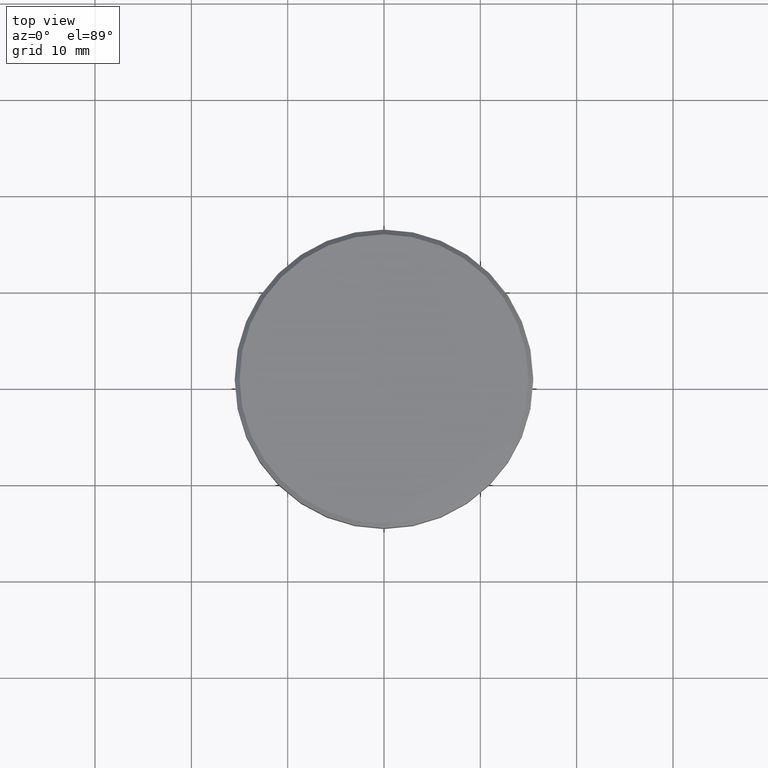
[diagram: clean part render]
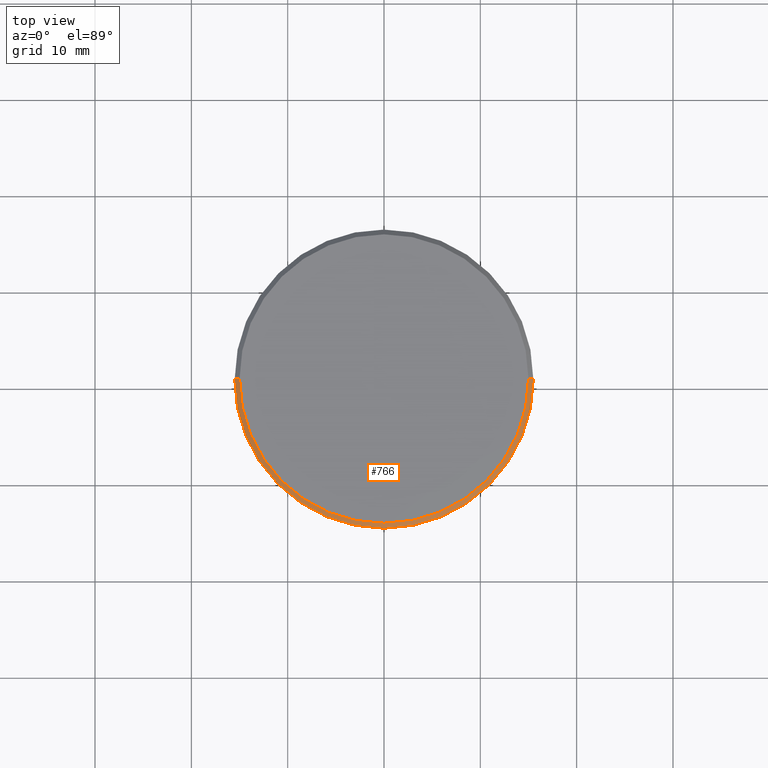
[diagram: same view with one face highlighted and labeled with its STEP entity id]
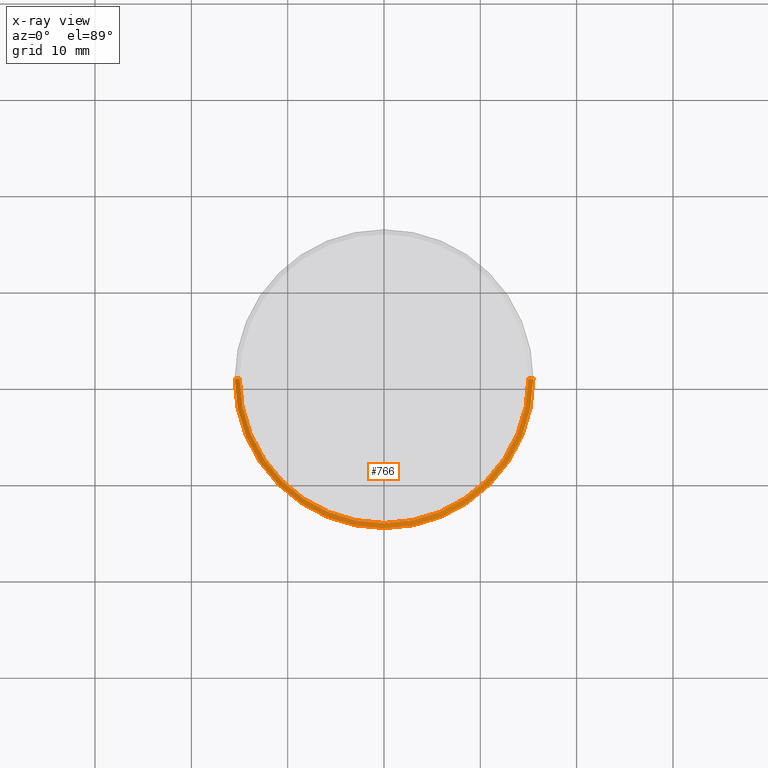
[diagram: x-ray of the same camera — body ghosted, the highlighted face saturated]
A machine part, top view. The second image highlights one B-rep face of the part: STEP entity #766.
The next image is the same camera in x-ray: the body ghosted, the highlighted face saturated — about 0% of this face is hidden behind the body in this view.
In plain terms, the highlighted conical surface has half-angle 45 deg.
Its self-contained STEP definition (entity closure, byte-faithful):
#48 = LINE ( 'NONE', #698, #992 ) ;
#91 = CARTESIAN_POINT ( 'NONE',  ( 14.99999999999998579, 1.867586368699712587E-15, 0.000000000000000000 ) ) ;
#145 = DIRECTION ( 'NONE',  ( 0.7071067811865439090, 8.659560562354888485E-17, -0.7071067811865512365 ) ) ;
#177 = DIRECTION ( 'NONE',  ( 0.000000000000000000, 0.000000000000000000, -1.000000000000000000 ) ) ;
#239 = ORIENTED_EDGE ( 'NONE', *, *, #328, .F. ) ;
#260 = EDGE_LOOP ( 'NONE', ( #239, #866, #711, #626 ) ) ;
#289 = CARTESIAN_POINT ( 'NONE',  ( -15.50000000000000000, 1.898202538678397557E-15, -0.5000000000000196509 ) ) ;
#308 = CARTESIAN_POINT ( 'NONE',  ( -14.99999999999998579, 0.000000000000000000, 0.000000000000000000 ) ) ;
#328 = EDGE_CURVE ( 'NONE', #1091, #759, #1144, .T. ) ;
#409 = VERTEX_POINT ( 'NONE', #308 ) ;
#420 = DIRECTION ( 'NONE',  ( -0.7071067811865439090, 0.000000000000000000, -0.7071067811865512365 ) ) ;
#455 = FACE_OUTER_BOUND ( 'NONE', #260, .T. ) ;
#474 = CONICAL_SURFACE ( 'NONE', #494, 14.99999999999998579, 0.7853981633974430610 ) ;
#494 = AXIS2_PLACEMENT_3D ( 'NONE', #920, #177, #823 ) ;
#551 = AXIS2_PLACEMENT_3D ( 'NONE', #938, #769, #849 ) ;
#555 = CARTESIAN_POINT ( 'NONE',  ( 15.50000000000000000, 0.000000000000000000, -0.5000000000000196509 ) ) ;
#626 = ORIENTED_EDGE ( 'NONE', *, *, #891, .F. ) ;
#637 = CARTESIAN_POINT ( 'NONE',  ( 0.000000000000000000, 0.000000000000000000, 0.000000000000000000 ) ) ;
#698 = CARTESIAN_POINT ( 'NONE',  ( -14.99999999999998579, 0.000000000000000000, 0.000000000000000000 ) ) ;
#711 = ORIENTED_EDGE ( 'NONE', *, *, #937, .T. ) ;
#719 = CARTESIAN_POINT ( 'NONE',  ( 14.99999999999998579, 1.836970198721027617E-15, 0.000000000000000000 ) ) ;
#753 = DIRECTION ( 'NONE',  ( -0.000000000000000000, -0.000000000000000000, 1.000000000000000000 ) ) ;
#759 = VERTEX_POINT ( 'NONE', #555 ) ;
#766 = ADVANCED_FACE ( 'NONE', ( #455 ), #474, .T. ) ;
#769 = DIRECTION ( 'NONE',  ( 0.000000000000000000, 0.000000000000000000, -1.000000000000000000 ) ) ;
#822 = CIRCLE ( 'NONE', #551, 15.50000000000000000 ) ;
#823 = DIRECTION ( 'NONE',  ( -1.000000000000000000, 0.000000000000000000, 0.000000000000000000 ) ) ;
#837 = VECTOR ( 'NONE', #145, 1000.000000000000000 ) ;
#849 = DIRECTION ( 'NONE',  ( 1.000000000000000000, 0.000000000000000000, 0.000000000000000000 ) ) ;
#866 = ORIENTED_EDGE ( 'NONE', *, *, #1108, .F. ) ;
#891 = EDGE_CURVE ( 'NONE', #759, #1070, #822, .T. ) ;
#920 = CARTESIAN_POINT ( 'NONE',  ( 0.000000000000000000, 0.000000000000000000, 0.000000000000000000 ) ) ;
#936 = AXIS2_PLACEMENT_3D ( 'NONE', #637, #753, #1111 ) ;
#937 = EDGE_CURVE ( 'NONE', #409, #1070, #48, .T. ) ;
#938 = CARTESIAN_POINT ( 'NONE',  ( 0.000000000000000000, 0.000000000000000000, -0.5000000000000196509 ) ) ;
#992 = VECTOR ( 'NONE', #420, 1000.000000000000000 ) ;
#1065 = CIRCLE ( 'NONE', #936, 14.99999999999998579 ) ;
#1070 = VERTEX_POINT ( 'NONE', #289 ) ;
#1091 = VERTEX_POINT ( 'NONE', #91 ) ;
#1108 = EDGE_CURVE ( 'NONE', #409, #1091, #1065, .T. ) ;
#1111 = DIRECTION ( 'NONE',  ( 1.000000000000000000, 0.000000000000000000, 0.000000000000000000 ) ) ;
#1144 = LINE ( 'NONE', #719, #837 ) ;